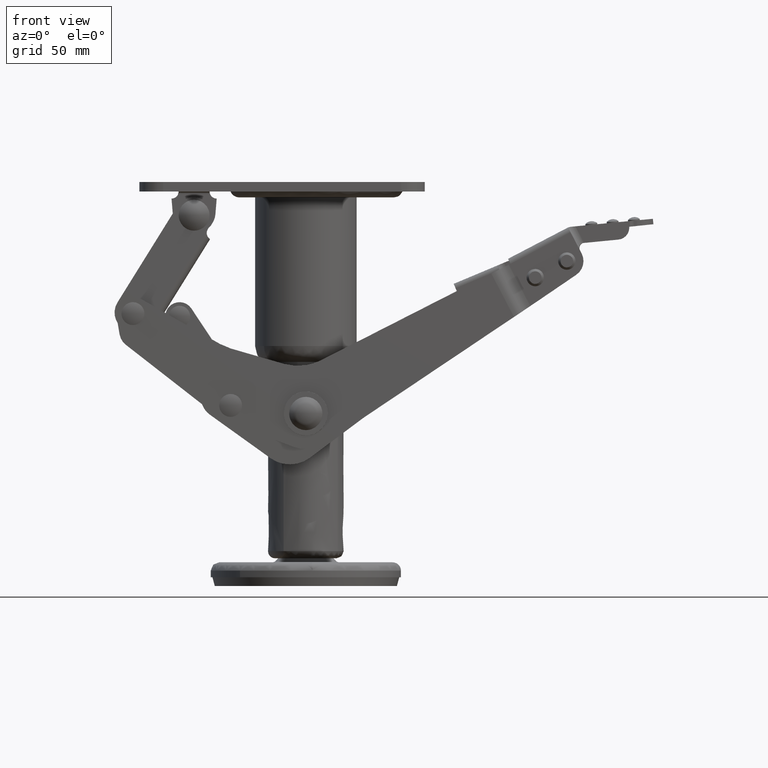
[diagram: clean part render]
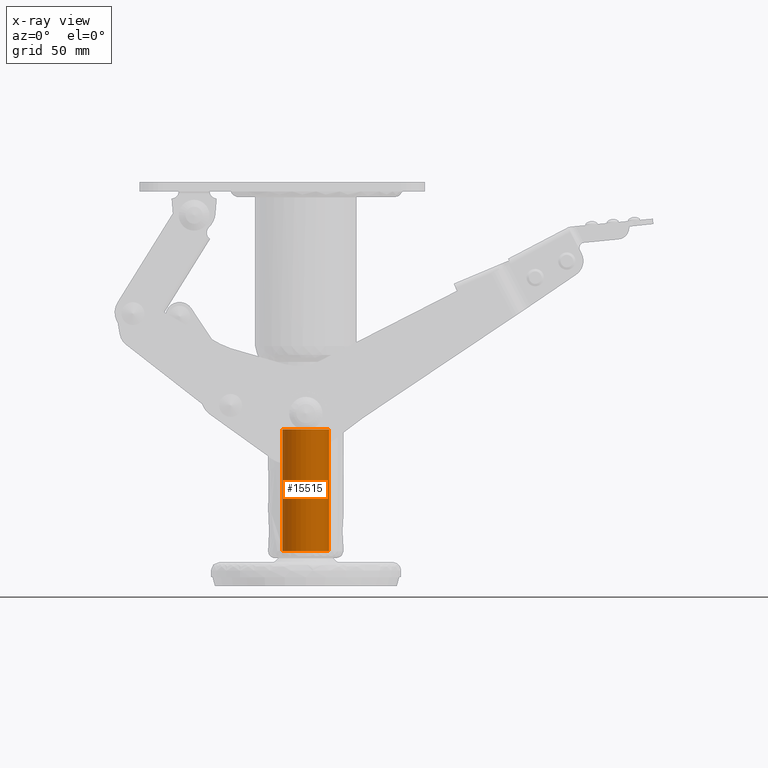
[diagram: x-ray — body ghosted, one internal face saturated and labeled with its STEP entity id]
A machine part, front view, then the same camera in x-ray: the body is ghosted and one INTERNAL B-rep face — a face not visible from any outside direction — is saturated and labeled: STEP entity #15515.
In plain terms, the highlighted face is a freeform B-spline surface patch.
Its self-contained STEP definition (entity closure, byte-faithful):
#15368=CARTESIAN_POINT('',(6.834833525425561,7.023179527800693,-57.819998075000008));
#15369=CARTESIAN_POINT('',(7.035833906149212,6.827569528746102,-57.819998075000001));
#15370=CARTESIAN_POINT('',(7.225317900739214,6.620784034633468,-57.819998075000001));
#15371=CARTESIAN_POINT('',(13.846101935372683,-0.604533866105746,-57.819998075000001));
#15372=CARTESIAN_POINT('',(6.620784034633468,-7.225317900739214,-57.819998075000001));
#15373=CARTESIAN_POINT('',(-0.604533866105746,-13.846101935372683,-57.819998075000001));
#15374=CARTESIAN_POINT('',(-7.225317900739214,-6.620784034633468,-57.819998075000001));
#15375=CARTESIAN_POINT('',(-13.846101935372683,0.604533866105746,-57.819998075000001));
#15376=CARTESIAN_POINT('',(-6.620784034633468,7.225317900739214,-57.819998075000001));
#15377=CARTESIAN_POINT('',(6.834833525425561,7.023179527800693,-111.611994923124980));
#15378=CARTESIAN_POINT('',(7.035833906149212,6.827569528746102,-111.611994923125000));
#15379=CARTESIAN_POINT('',(7.225317900739214,6.620784034633468,-111.611994923125000));
#15380=CARTESIAN_POINT('',(13.846101935372683,-0.604533866105746,-111.611994923125010));
#15381=CARTESIAN_POINT('',(6.620784034633468,-7.225317900739214,-111.611994923125000));
#15382=CARTESIAN_POINT('',(-0.604533866105746,-13.846101935372683,-111.611994923125010));
#15383=CARTESIAN_POINT('',(-7.225317900739214,-6.620784034633468,-111.611994923125000));
#15384=CARTESIAN_POINT('',(-13.846101935372683,0.604533866105746,-111.611994923125010));
#15385=CARTESIAN_POINT('',(-6.620784034633468,7.225317900739214,-111.611994923125000));
#15393=(BOUNDED_SURFACE()B_SPLINE_SURFACE(2,1,((#15368,#15377),(#15369,#15378),(#15370,#15379),(#15371,#15380),(#15372,#15381),(#15373,#15382),(#15374,#15383),(#15375,#15384),(#15376,#15385)),.UNSPECIFIED.,.F.,.F.,.U.)B_SPLINE_SURFACE_WITH_KNOTS((3,2,2,2,3),(2,2),(0.0,0.649486865801014,16.886658510826340,33.123830155851657,49.361001800876977),(0.0,53.791996848125002),.UNSPECIFIED.)GEOMETRIC_REPRESENTATION_ITEM()RATIONAL_B_SPLINE_SURFACE(((0.977505800795127,0.977505800795127),(0.988284271247462,0.988284271247462),(1.0,1.0),(0.707106781186548,0.707106781186548),(1.0,1.0),(0.707106781186548,0.707106781186548),(1.0,1.0),(0.707106781186548,0.707106781186548),(1.0,1.0)))REPRESENTATION_ITEM('')SURFACE());
#15394=CARTESIAN_POINT('',(9.799999999999999,0.0,-59.099997999999999));
#15395=VERTEX_POINT('',#15394);
#15396=CARTESIAN_POINT('',(6.834832883557509,7.023179192948209,-59.099998000001861));
#15397=VERTEX_POINT('',#15396);
#15398=CARTESIAN_POINT('',(9.799999999999999,0.0,-59.099997999999999));
#15399=CARTESIAN_POINT('',(9.800290217975284,0.897224420281570,-59.099998000000397));
#15400=CARTESIAN_POINT('',(9.580034687291168,2.487547785922160,-59.099998000000383));
#15401=CARTESIAN_POINT('',(8.604548961511993,4.924333149125983,-59.099998000001712));
#15402=CARTESIAN_POINT('',(7.565957560718509,6.312474381985327,-59.099998000001158));
#15403=CARTESIAN_POINT('',(6.834832883557509,7.023179192948209,-59.099998000001861));
#15404=B_SPLINE_CURVE_WITH_KNOTS('',3,(#15398,#15399,#15400,#15401,#15402,#15403),.UNSPECIFIED.,.F.,.U.,(4,1,1,4),(0.000000074959908,2.691623500501255,4.771464302682442,7.830137633587082),.UNSPECIFIED.);
#15405=EDGE_CURVE('',#15395,#15397,#15404,.T.);
#15406=ORIENTED_EDGE('',*,*,#15405,.T.);
#15407=CARTESIAN_POINT('',(6.834832885485136,7.023179191072275,-110.299995000000000));
#15408=VERTEX_POINT('',#15407);
#15409=CARTESIAN_POINT('',(6.834832883557509,7.023179192948209,-59.099998000001861));
#15410=CARTESIAN_POINT('',(6.834832885485136,7.023179191072275,-110.299995000000000));
#15411=QUASI_UNIFORM_CURVE('',1,(#15409,#15410),.UNSPECIFIED.,.F.,.U.);
#15412=EDGE_CURVE('',#15397,#15408,#15411,.T.);
#15413=ORIENTED_EDGE('',*,*,#15412,.T.);
#15414=CARTESIAN_POINT('',(9.799999999999999,0.0,-110.299995000000000));
#15415=VERTEX_POINT('',#15414);
#15416=CARTESIAN_POINT('',(9.799999999999999,0.0,-110.299995000000000));
#15417=CARTESIAN_POINT('',(9.800167710743422,0.774873515664515,-110.299995000000290));
#15418=CARTESIAN_POINT('',(9.654102485452983,1.998235203345124,-110.299994999999700));
#15419=CARTESIAN_POINT('',(9.112468987912521,3.713387510431220,-110.299995000000490));
#15420=CARTESIAN_POINT('',(8.291546731609117,5.362566502320601,-110.299994999999400));
#15421=CARTESIAN_POINT('',(7.419510399982587,6.454455193293586,-110.299995000000190));
#15422=CARTESIAN_POINT('',(6.834832885485136,7.023179191072275,-110.299995000000000));
#15423=B_SPLINE_CURVE_WITH_KNOTS('',3,(#15416,#15417,#15418,#15419,#15420,#15421,#15422),.UNSPECIFIED.,.F.,.U.,(4,1,1,1,4),(0.000000074960597,2.324575842796006,3.670408913799461,5.383207299558113,7.830137630897241),.UNSPECIFIED.);
#15424=EDGE_CURVE('',#15415,#15408,#15423,.T.);
#15425=ORIENTED_EDGE('',*,*,#15424,.F.);
#15426=CARTESIAN_POINT('',(0.000002751542814,-9.799999999999614,-110.299995000000000));
#15427=VERTEX_POINT('',#15426);
#15428=CARTESIAN_POINT('',(0.000002751542814,-9.799999999999614,-110.299995000000000));
#15429=CARTESIAN_POINT('',(0.922071196500850,-9.800363624462495,-110.299995000000100));
#15430=CARTESIAN_POINT('',(2.445198159274168,-9.583348168524630,-110.299995000000190));
#15431=CARTESIAN_POINT('',(4.356181352962635,-8.832568079641494,-110.299994999999900));
#15432=CARTESIAN_POINT('',(6.040300840166170,-7.809315972910532,-110.299994999999500));
#15433=CARTESIAN_POINT('',(7.600897341751451,-6.341635387403340,-110.299995000000610));
#15434=CARTESIAN_POINT('',(8.887242740402082,-4.337604604159693,-110.299994999999600));
#15435=CARTESIAN_POINT('',(9.635463141325799,-2.204797085496399,-110.299995000000000));
#15436=CARTESIAN_POINT('',(9.800128830285290,-0.721591319064055,-110.299995000000810));
#15437=CARTESIAN_POINT('',(9.799999999999999,0.0,-110.299995000000000));
#15438=B_SPLINE_CURVE_WITH_KNOTS('',3,(#15428,#15429,#15430,#15431,#15432,#15433,#15434,#15435,#15436,#15437),.UNSPECIFIED.,.F.,.U.,(4,1,1,1,1,1,1,4),(0.000000284064182,2.766090941192120,4.570069326561548,6.133516903272252,8.659055935549944,10.944084338494701,13.229141729252790,15.393899041371510),.UNSPECIFIED.);
#15439=EDGE_CURVE('',#15427,#15415,#15438,.T.);
#15440=ORIENTED_EDGE('',*,*,#15439,.F.);
#15441=CARTESIAN_POINT('',(-9.799999999999999,0.0,-110.299995000000000));
#15442=VERTEX_POINT('',#15441);
#15443=CARTESIAN_POINT('',(-9.799999999999999,0.0,-110.299995000000000));
#15444=CARTESIAN_POINT('',(-9.800353992528727,-0.922064860986880,-110.299995000000000));
#15445=CARTESIAN_POINT('',(-9.583349535529695,-2.445191965952033,-110.299995000000100));
#15446=CARTESIAN_POINT('',(-8.700242725767048,-4.693563421686543,-110.299994999999800));
#15447=CARTESIAN_POINT('',(-7.533184857296553,-6.394807024985105,-110.299995000000100));
#15448=CARTESIAN_POINT('',(-5.793715292625359,-8.010536713735542,-110.299995000000490));
#15449=CARTESIAN_POINT('',(-4.038684203211246,-9.019226274665710,-110.299994999998400));
#15450=CARTESIAN_POINT('',(-1.964228375470850,-9.662048777048003,-110.299995000003610));
#15451=CARTESIAN_POINT('',(-0.721590125877825,-9.800139769527354,-110.299994999996400));
#15452=CARTESIAN_POINT('',(0.000002751542814,-9.799999999999614,-110.299995000000000));
#15453=B_SPLINE_CURVE_WITH_KNOTS('',3,(#15443,#15444,#15445,#15446,#15447,#15448,#15449,#15450,#15451,#15452),.UNSPECIFIED.,.F.,.U.,(4,1,1,1,1,1,1,4),(0.000000283116368,2.766091498147759,4.570070246218853,7.215975015848834,8.899559465614818,11.665693231321869,13.229144396215981,15.393902143020970),.UNSPECIFIED.);
#15454=EDGE_CURVE('',#15442,#15427,#15453,.T.);
#15455=ORIENTED_EDGE('',*,*,#15454,.F.);
#15456=CARTESIAN_POINT('',(-6.620784544070083,7.225318363384162,-110.299995000000000));
#15457=VERTEX_POINT('',#15456);
#15458=CARTESIAN_POINT('',(-6.620784544070083,7.225318363384162,-110.299995000000000));
#15459=CARTESIAN_POINT('',(-7.182461188632302,6.710848465372947,-110.299995000000100));
#15460=CARTESIAN_POINT('',(-8.212704536016982,5.517796043355427,-110.299995000000000));
#15461=CARTESIAN_POINT('',(-9.455637103103646,3.088564837711758,-110.299995000000100));
#15462=CARTESIAN_POINT('',(-9.800834803057731,1.142617104737877,-110.299995000000000));
#15463=CARTESIAN_POINT('',(-9.799999999999999,0.0,-110.299995000000000));
#15464=B_SPLINE_CURVE_WITH_KNOTS('',3,(#15458,#15459,#15460,#15461,#15462,#15463),.UNSPECIFIED.,.F.,.U.,(4,1,1,4),(0.000000079233883,2.285037163000992,4.696986196196994,8.124564687998781),.UNSPECIFIED.);
#15465=EDGE_CURVE('',#15457,#15442,#15464,.T.);
#15466=ORIENTED_EDGE('',*,*,#15465,.F.);
#15467=CARTESIAN_POINT('',(-6.620784544642984,7.225318362859195,-59.099997999997491));
#15468=VERTEX_POINT('',#15467);
#15469=CARTESIAN_POINT('',(-6.620784544642984,7.225318362859195,-59.099997999997491));
#15470=CARTESIAN_POINT('',(-6.620784544070083,7.225318363384162,-110.299995000000000));
#15471=QUASI_UNIFORM_CURVE('',1,(#15469,#15470),.UNSPECIFIED.,.F.,.U.);
#15472=EDGE_CURVE('',#15468,#15457,#15471,.T.);
#15473=ORIENTED_EDGE('',*,*,#15472,.F.);
#15474=CARTESIAN_POINT('',(-9.799999999999999,0.0,-59.099997999999999));
#15475=VERTEX_POINT('',#15474);
#15476=CARTESIAN_POINT('',(-6.620784544642984,7.225318362859195,-59.099997999997491));
#15477=CARTESIAN_POINT('',(-7.213655759275433,6.682263937208220,-59.099997999997612));
#15478=CARTESIAN_POINT('',(-8.320083851424728,5.384372617150218,-59.099997999998351));
#15479=CARTESIAN_POINT('',(-9.501296696213451,2.919484680168793,-59.099997999998827));
#15480=CARTESIAN_POINT('',(-9.800525765171036,1.015636453628125,-59.099997999999843));
#15481=CARTESIAN_POINT('',(-9.799999999999999,0.0,-59.099997999999999));
#15482=B_SPLINE_CURVE_WITH_KNOTS('',3,(#15476,#15477,#15478,#15479,#15480,#15481),.UNSPECIFIED.,.F.,.U.,(4,1,1,4),(0.000000079233662,2.411989640209023,5.077834170828711,8.124564687221717),.UNSPECIFIED.);
#15483=EDGE_CURVE('',#15468,#15475,#15482,.T.);
#15484=ORIENTED_EDGE('',*,*,#15483,.T.);
#15485=CARTESIAN_POINT('',(0.000002751542814,-9.799999999999614,-59.099997999999999));
#15486=VERTEX_POINT('',#15485);
#15487=CARTESIAN_POINT('',(-9.799999999999999,0.0,-59.099997999999999));
#15488=CARTESIAN_POINT('',(-9.800360037895848,-0.922066762395779,-59.099998000000113));
#15489=CARTESIAN_POINT('',(-9.583336810769902,-2.445192118603536,-59.099997999999736));
#15490=CARTESIAN_POINT('',(-8.700251561792145,-4.693532522654657,-59.099998000000149));
#15491=CARTESIAN_POINT('',(-7.350167756390424,-6.661858655234624,-59.099998000000369));
#15492=CARTESIAN_POINT('',(-5.523715253531726,-8.198400372758167,-59.099997999999502));
#15493=CARTESIAN_POINT('',(-3.731180616248024,-9.114212236446958,-59.099997999999893));
#15494=CARTESIAN_POINT('',(-1.964255802197484,-9.662089624452232,-59.099998000001577));
#15495=CARTESIAN_POINT('',(-0.721590009480950,-9.800141209754035,-59.099997999998237));
#15496=CARTESIAN_POINT('',(0.000002751542814,-9.799999999999614,-59.099997999999999));
#15497=B_SPLINE_CURVE_WITH_KNOTS('',3,(#15487,#15488,#15489,#15490,#15491,#15492,#15493,#15494,#15495,#15496),.UNSPECIFIED.,.F.,.U.,(4,1,1,1,1,1,1,4),(0.000000283116368,2.766091498147759,4.570070246218853,7.215975015848834,9.861708955728629,11.665693231321869,13.229144396215981,15.393902143020970),.UNSPECIFIED.);
#15498=EDGE_CURVE('',#15475,#15486,#15497,.T.);
#15499=ORIENTED_EDGE('',*,*,#15498,.T.);
#15500=CARTESIAN_POINT('',(0.000002751542814,-9.799999999999614,-59.099997999999999));
#15501=CARTESIAN_POINT('',(0.922069321920275,-9.800361328542152,-59.099998000000177));
#15502=CARTESIAN_POINT('',(2.445203557970648,-9.583354809969309,-59.099997999999751));
#15503=CARTESIAN_POINT('',(4.356200490807606,-8.832590469762256,-59.099998000000092));
#15504=CARTESIAN_POINT('',(5.937081645626594,-7.871847049828189,-59.099997999999971));
#15505=CARTESIAN_POINT('',(7.521143662544058,-6.436472241437813,-59.099997999999907));
#15506=CARTESIAN_POINT('',(8.847285493594137,-4.451924430504859,-59.099998000000092));
#15507=CARTESIAN_POINT('',(9.635441060443771,-2.204798927188564,-59.099997999999943));
#15508=CARTESIAN_POINT('',(9.800127623247080,-0.721588359286285,-59.099998000000099));
#15509=CARTESIAN_POINT('',(9.799999999999999,0.0,-59.099997999999999));
#15510=B_SPLINE_CURVE_WITH_KNOTS('',3,(#15500,#15501,#15502,#15503,#15504,#15505,#15506,#15507,#15508,#15509),.UNSPECIFIED.,.F.,.U.,(4,1,1,1,1,1,1,4),(0.000000284064182,2.766090941192120,4.570069326561548,6.133516903272252,8.298242662459664,10.944084338494701,13.229141729252790,15.393899041371510),.UNSPECIFIED.);
#15511=EDGE_CURVE('',#15486,#15395,#15510,.T.);
#15512=ORIENTED_EDGE('',*,*,#15511,.T.);
#15513=EDGE_LOOP('',(#15406,#15413,#15425,#15440,#15455,#15466,#15473,#15484,#15499,#15512));
#15514=FACE_OUTER_BOUND('',#15513,.T.);
#15515=ADVANCED_FACE('',(#15514),#15393,.F.);